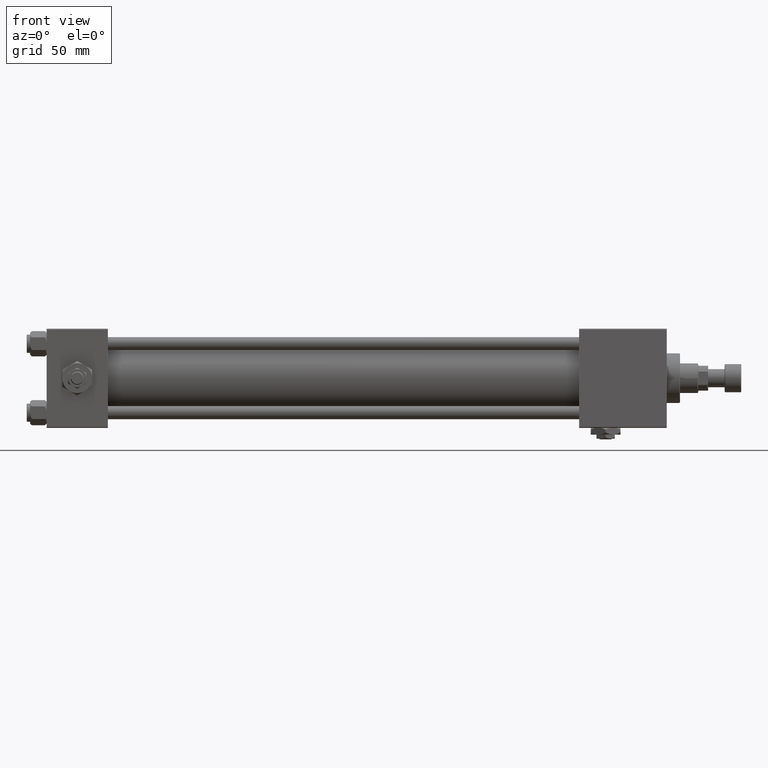
[diagram: clean part render]
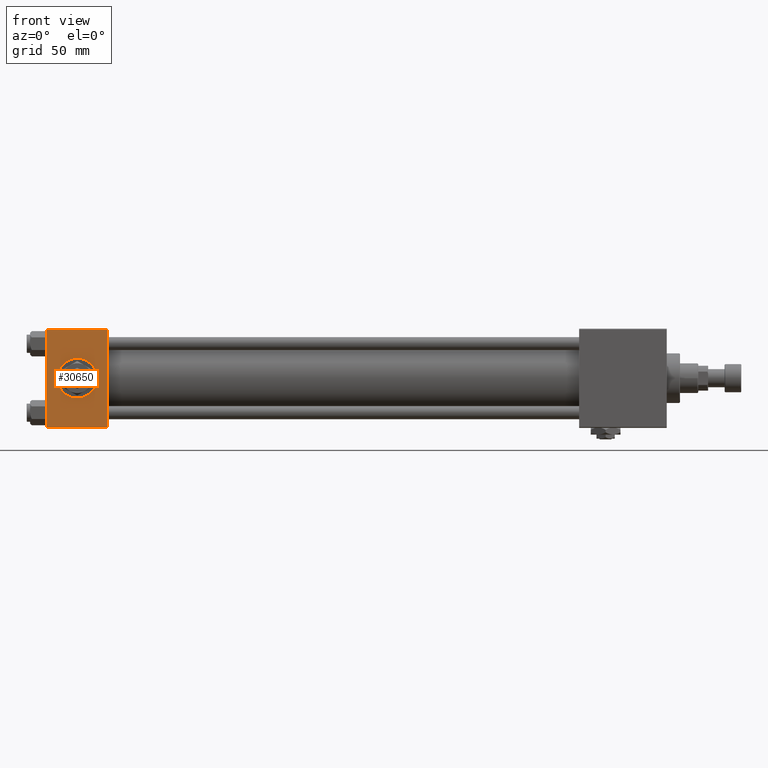
[diagram: same view with one face highlighted and labeled with its STEP entity id]
A machine part, front view. The second image highlights one B-rep face of the part: STEP entity #30650.
In plain terms, the highlighted planar face has unit normal (0, 1, 0).
Its self-contained STEP definition (entity closure, byte-faithful):
#1085 = CARTESIAN_POINT ( 'NONE',  ( 37.00000000000000000, -30.00000000000000000, -29.50000000000001776 ) ) ;
#1332 = EDGE_LOOP ( 'NONE', ( #18697, #44077 ) ) ;
#1521 = EDGE_CURVE ( 'NONE', #45584, #41387, #30010, .T. ) ;
#2359 = CARTESIAN_POINT ( 'NONE',  ( 0.000000000000000000, -30.00000000000000000, 29.49999999999999289 ) ) ;
#3340 = DIRECTION ( 'NONE',  ( 0.000000000000000000, -1.000000000000000000, -8.673617379884036705E-17 ) ) ;
#3810 = EDGE_CURVE ( 'NONE', #51955, #36651, #16314, .T. ) ;
#5424 = LINE ( 'NONE', #42238, #46645 ) ;
#7513 = CARTESIAN_POINT ( 'NONE',  ( 0.000000000000000000, -30.00000000000000000, 29.99999999999999289 ) ) ;
#9263 = VECTOR ( 'NONE', #43243, 1000.000000000000000 ) ;
#10293 = CIRCLE ( 'NONE', #14550, 12.00000000000000178 ) ;
#11599 = VECTOR ( 'NONE', #40620, 1000.000000000000000 ) ;
#13646 = VERTEX_POINT ( 'NONE', #41767 ) ;
#14550 = AXIS2_PLACEMENT_3D ( 'NONE', #31360, #3340, #22561 ) ;
#14842 = ORIENTED_EDGE ( 'NONE', *, *, #33864, .T. ) ;
#15448 = CARTESIAN_POINT ( 'NONE',  ( 37.00000000000000000, -30.00000000000000000, 29.99999999999999289 ) ) ;
#16314 = LINE ( 'NONE', #7513, #11599 ) ;
#17900 = CARTESIAN_POINT ( 'NONE',  ( 18.50000000000000000, -30.00000000000000000, 12.00000000000000178 ) ) ;
#18321 = DIRECTION ( 'NONE',  ( 0.000000000000000000, -1.000000000000000000, -8.673617379884036705E-17 ) ) ;
#18697 = ORIENTED_EDGE ( 'NONE', *, *, #18741, .F. ) ;
#18741 = EDGE_CURVE ( 'NONE', #13646, #38647, #42938, .T. ) ;
#22067 = ORIENTED_EDGE ( 'NONE', *, *, #3810, .T. ) ;
#22561 = DIRECTION ( 'NONE',  ( 0.000000000000000000, 0.000000000000000000, -1.000000000000000000 ) ) ;
#23317 = AXIS2_PLACEMENT_3D ( 'NONE', #26867, #18321, #47159 ) ;
#23467 = CARTESIAN_POINT ( 'NONE',  ( 0.000000000000000000, -30.00000000000000000, -29.50000000000001776 ) ) ;
#26230 = DIRECTION ( 'NONE',  ( -1.000000000000000000, 0.000000000000000000, 0.000000000000000000 ) ) ;
#26659 = FACE_BOUND ( 'NONE', #1332, .T. ) ;
#26867 = CARTESIAN_POINT ( 'NONE',  ( 18.50000000000000000, -30.00000000000000000, 0.000000000000000000 ) ) ;
#29618 = AXIS2_PLACEMENT_3D ( 'NONE', #15448, #48301, #36826 ) ;
#30010 = LINE ( 'NONE', #49777, #31110 ) ;
#30483 = EDGE_CURVE ( 'NONE', #45584, #51955, #5424, .T. ) ;
#30650 = ADVANCED_FACE ( 'NONE', ( #26659, #42923 ), #52822, .F. ) ;
#31110 = VECTOR ( 'NONE', #50554, 1000.000000000000000 ) ;
#31360 = CARTESIAN_POINT ( 'NONE',  ( 18.50000000000000000, -30.00000000000000000, 0.000000000000000000 ) ) ;
#31605 = ORIENTED_EDGE ( 'NONE', *, *, #30483, .T. ) ;
#33864 = EDGE_CURVE ( 'NONE', #36651, #41387, #34977, .T. ) ;
#34977 = LINE ( 'NONE', #51258, #9263 ) ;
#36651 = VERTEX_POINT ( 'NONE', #23467 ) ;
#36826 = DIRECTION ( 'NONE',  ( 0.000000000000000000, -0.000000000000000000, 1.000000000000000000 ) ) ;
#37007 = EDGE_LOOP ( 'NONE', ( #22067, #14842, #42686, #31605 ) ) ;
#38647 = VERTEX_POINT ( 'NONE', #17900 ) ;
#39285 = CARTESIAN_POINT ( 'NONE',  ( 37.00000000000000000, -30.00000000000000000, 29.49999999999999289 ) ) ;
#40620 = DIRECTION ( 'NONE',  ( 0.000000000000000000, 0.000000000000000000, -1.000000000000000000 ) ) ;
#41387 = VERTEX_POINT ( 'NONE', #1085 ) ;
#41767 = CARTESIAN_POINT ( 'NONE',  ( 18.50000000000000000, -30.00000000000000000, -12.00000000000000178 ) ) ;
#42238 = CARTESIAN_POINT ( 'NONE',  ( 37.00000000000000000, -30.00000000000000000, 29.49999999999999289 ) ) ;
#42686 = ORIENTED_EDGE ( 'NONE', *, *, #1521, .F. ) ;
#42923 = FACE_OUTER_BOUND ( 'NONE', #37007, .T. ) ;
#42938 = CIRCLE ( 'NONE', #23317, 12.00000000000000178 ) ;
#43243 = DIRECTION ( 'NONE',  ( 1.000000000000000000, 0.000000000000000000, 0.000000000000000000 ) ) ;
#44077 = ORIENTED_EDGE ( 'NONE', *, *, #50991, .F. ) ;
#45584 = VERTEX_POINT ( 'NONE', #39285 ) ;
#46645 = VECTOR ( 'NONE', #26230, 1000.000000000000000 ) ;
#47159 = DIRECTION ( 'NONE',  ( 0.000000000000000000, 0.000000000000000000, -1.000000000000000000 ) ) ;
#48301 = DIRECTION ( 'NONE',  ( -0.000000000000000000, 1.000000000000000000, 0.000000000000000000 ) ) ;
#49777 = CARTESIAN_POINT ( 'NONE',  ( 37.00000000000000000, -30.00000000000000000, 29.99999999999999289 ) ) ;
#50554 = DIRECTION ( 'NONE',  ( 0.000000000000000000, 0.000000000000000000, -1.000000000000000000 ) ) ;
#50991 = EDGE_CURVE ( 'NONE', #38647, #13646, #10293, .T. ) ;
#51258 = CARTESIAN_POINT ( 'NONE',  ( 37.00000000000000000, -30.00000000000000000, -29.50000000000001776 ) ) ;
#51955 = VERTEX_POINT ( 'NONE', #2359 ) ;
#52822 = PLANE ( 'NONE',  #29618 ) ;